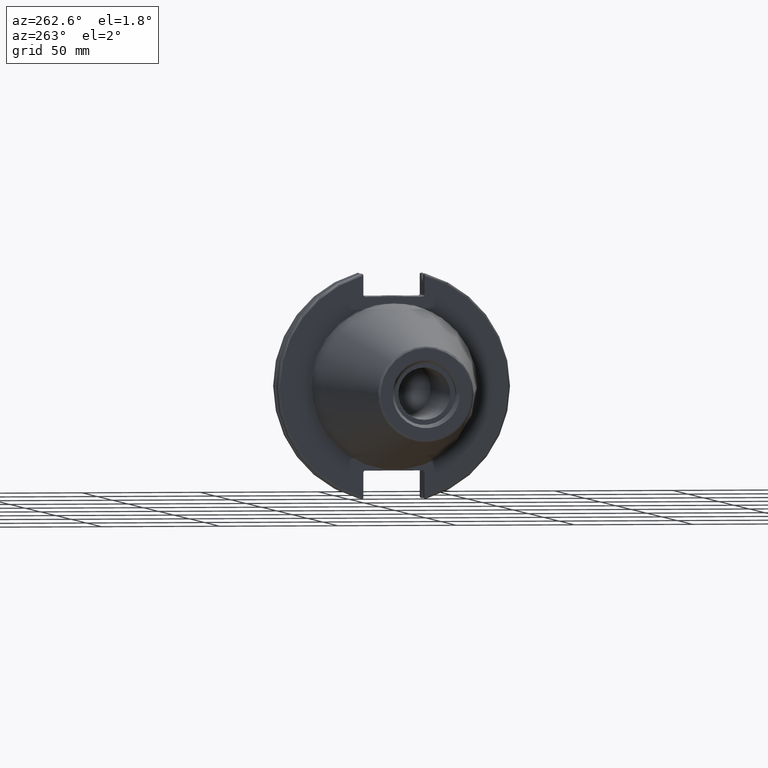
[diagram: clean part render]
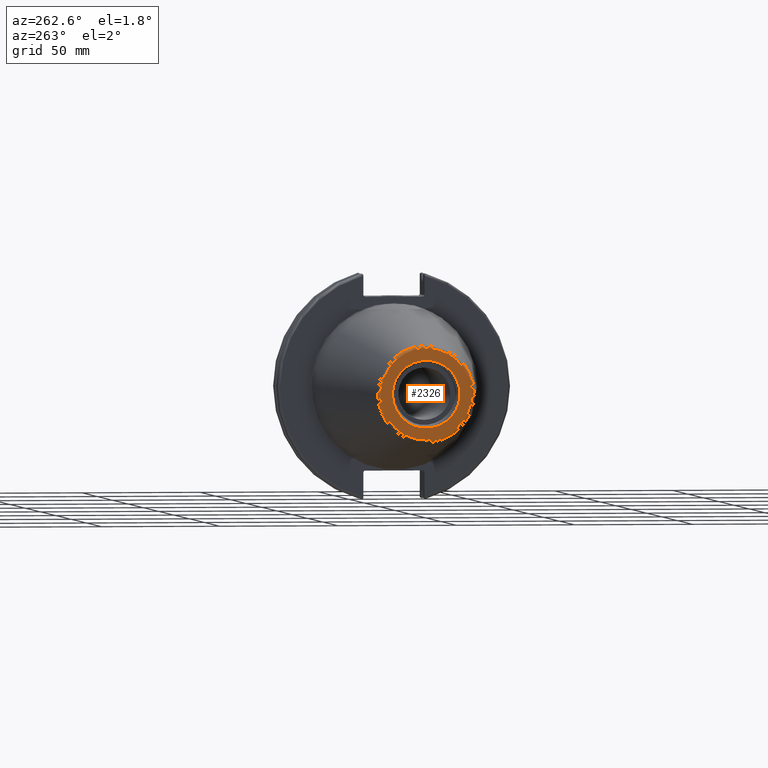
[diagram: same view with one face highlighted and labeled with its STEP entity id]
A machine part, auxiliary view. The second image highlights one B-rep face of the part: STEP entity #2326.
In plain terms, the highlighted planar face has unit normal (-1, 0, 0).
Its self-contained STEP definition (entity closure, byte-faithful):
#563=FACE_BOUND('',#890,.T.);
#606=CIRCLE('',#2669,19.2435889303637);
#607=CIRCLE('',#2671,14.2875);
#770=FACE_OUTER_BOUND('',#889,.T.);
#889=EDGE_LOOP('',(#1876));
#890=EDGE_LOOP('',(#1877));
#1333=VERTEX_POINT('',#4071);
#1334=VERTEX_POINT('',#4075);
#1541=EDGE_CURVE('',#1333,#1333,#606,.T.);
#1542=EDGE_CURVE('',#1334,#1334,#607,.T.);
#1876=ORIENTED_EDGE('',*,*,#1541,.F.);
#1877=ORIENTED_EDGE('',*,*,#1542,.T.);
#2249=PLANE('',#2670);
#2326=ADVANCED_FACE('',(#770,#563),#2249,.T.);
#2669=AXIS2_PLACEMENT_3D('',#4073,#3110,#3111);
#2670=AXIS2_PLACEMENT_3D('',#4074,#3112,#3113);
#2671=AXIS2_PLACEMENT_3D('',#4076,#3114,#3115);
#3110=DIRECTION('center_axis',(1.,0.,0.));
#3111=DIRECTION('ref_axis',(0.,-1.,1.83697019872103E-16));
#3112=DIRECTION('center_axis',(-1.,0.,0.));
#3113=DIRECTION('ref_axis',(0.,0.,1.));
#3114=DIRECTION('center_axis',(1.,0.,0.));
#3115=DIRECTION('ref_axis',(0.,0.,-1.));
#4071=CARTESIAN_POINT('',(-101.6,-2.35665995876774E-15,19.2435889303637));
#4073=CARTESIAN_POINT('Origin',(-101.6,0.,0.));
#4074=CARTESIAN_POINT('Origin',(-101.6,20.1083333333333,0.));
#4075=CARTESIAN_POINT('',(-101.6,-14.2875,-1.74971411428178E-15));
#4076=CARTESIAN_POINT('Origin',(-101.6,0.,0.));